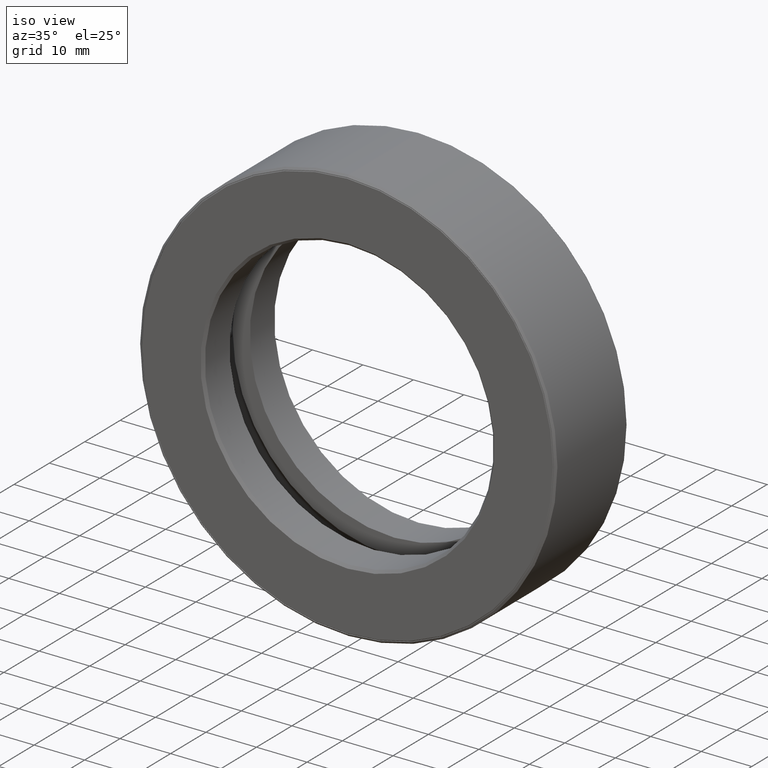
[diagram: clean part render]
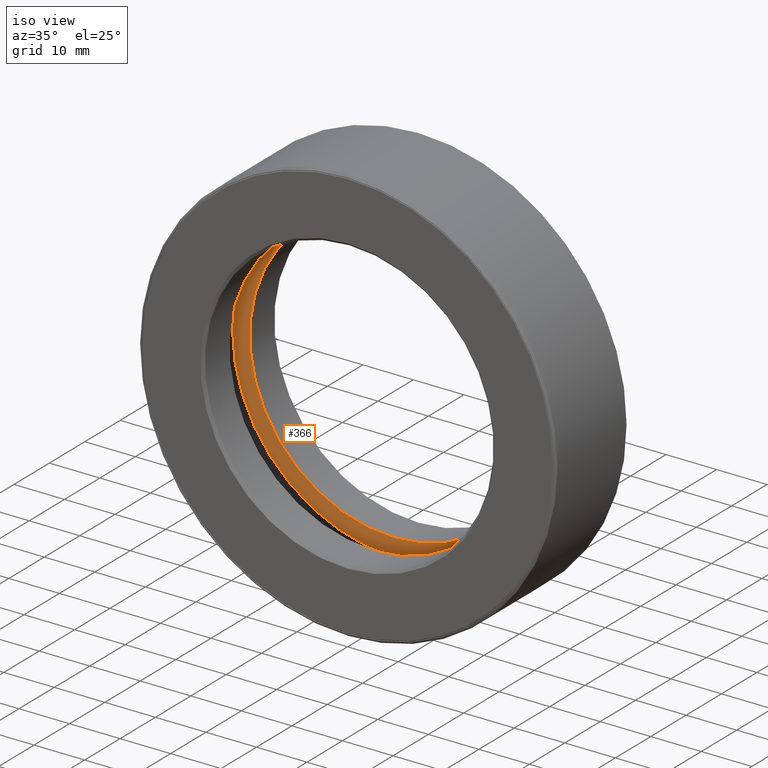
[diagram: same view with one face highlighted and labeled with its STEP entity id]
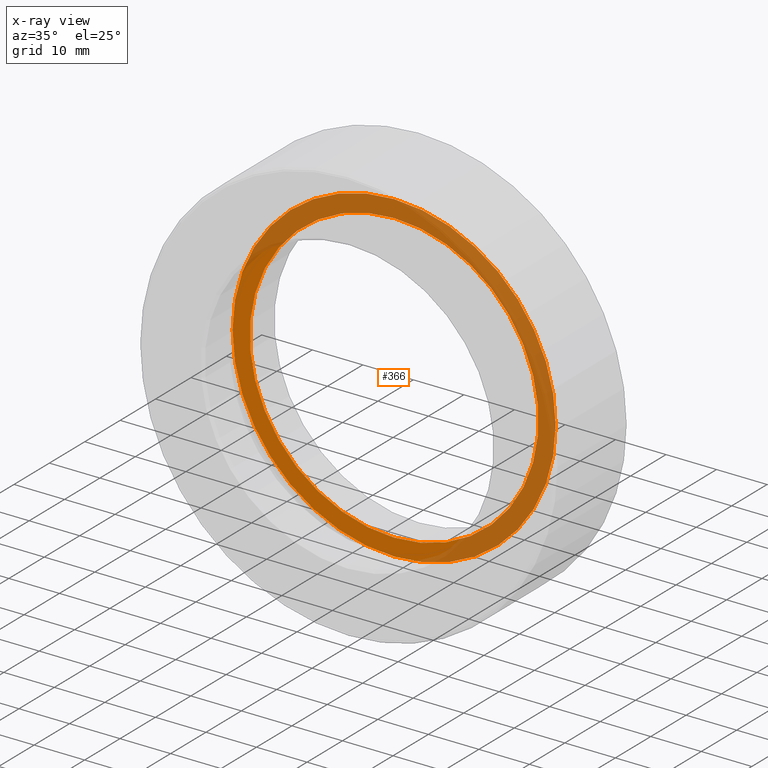
[diagram: x-ray of the same camera — body ghosted, the highlighted face saturated]
A machine part, iso view. The second image highlights one B-rep face of the part: STEP entity #366.
The next image is the same camera in x-ray: the body ghosted, the highlighted face saturated — about 61% of this face is hidden behind the body in this view.
In plain terms, the highlighted planar face has unit normal (0, -1, 0).
Its self-contained STEP definition (entity closure, byte-faithful):
#19 = AXIS2_PLACEMENT_3D ( 'NONE', #535, #496, #117 ) ;
#48 = EDGE_LOOP ( 'NONE', ( #235 ) ) ;
#76 = CARTESIAN_POINT ( 'NONE',  ( 0.0000000000000000000, 0.5187499999999999300, 0.0000000000000000000 ) ) ;
#117 = DIRECTION ( 'NONE',  ( 0.0000000000000000000, 0.0000000000000000000, 1.000000000000000000 ) ) ;
#167 = DIRECTION ( 'NONE',  ( 0.0000000000000000000, -0.0000000000000000000, -1.000000000000000000 ) ) ;
#189 = AXIS2_PLACEMENT_3D ( 'NONE', #537, #312, #167 ) ;
#199 = CIRCLE ( 'NONE', #507, 1.258499999999999700 ) ;
#235 = ORIENTED_EDGE ( 'NONE', *, *, #571, .F. ) ;
#273 = DIRECTION ( 'NONE',  ( 0.0000000000000000000, 0.0000000000000000000, 1.000000000000000000 ) ) ;
#312 = DIRECTION ( 'NONE',  ( 0.0000000000000000000, -1.000000000000000000, 0.0000000000000000000 ) ) ;
#345 = ORIENTED_EDGE ( 'NONE', *, *, #380, .T. ) ;
#366 = ADVANCED_FACE ( 'NONE', ( #391, #522 ), #533, .T. ) ;
#370 = CIRCLE ( 'NONE', #19, 1.125000000000000200 ) ;
#375 = EDGE_LOOP ( 'NONE', ( #345 ) ) ;
#380 = EDGE_CURVE ( 'NONE', #423, #423, #370, .T. ) ;
#391 = FACE_BOUND ( 'NONE', #375, .T. ) ;
#407 = DIRECTION ( 'NONE',  ( -0.0000000000000000000, 1.000000000000000000, -0.0000000000000000000 ) ) ;
#423 = VERTEX_POINT ( 'NONE', #456 ) ;
#456 = CARTESIAN_POINT ( 'NONE',  ( 0.0000000000000000000, 0.5187499999999998200, 1.125000000000000200 ) ) ;
#496 = DIRECTION ( 'NONE',  ( -0.0000000000000000000, 1.000000000000000000, -0.0000000000000000000 ) ) ;
#507 = AXIS2_PLACEMENT_3D ( 'NONE', #76, #407, #273 ) ;
#522 = FACE_OUTER_BOUND ( 'NONE', #48, .T. ) ;
#533 = PLANE ( 'NONE',  #189 ) ;
#535 = CARTESIAN_POINT ( 'NONE',  ( 0.0000000000000000000, 0.5187499999999998200, 0.0000000000000000000 ) ) ;
#537 = CARTESIAN_POINT ( 'NONE',  ( 2.653831735418238500E-016, 0.5187499999999999300, 0.0000000000000000000 ) ) ;
#560 = VERTEX_POINT ( 'NONE', #604 ) ;
#571 = EDGE_CURVE ( 'NONE', #560, #560, #199, .T. ) ;
#604 = CARTESIAN_POINT ( 'NONE',  ( 0.0000000000000000000, 0.5187499999999999300, 1.258499999999999700 ) ) ;